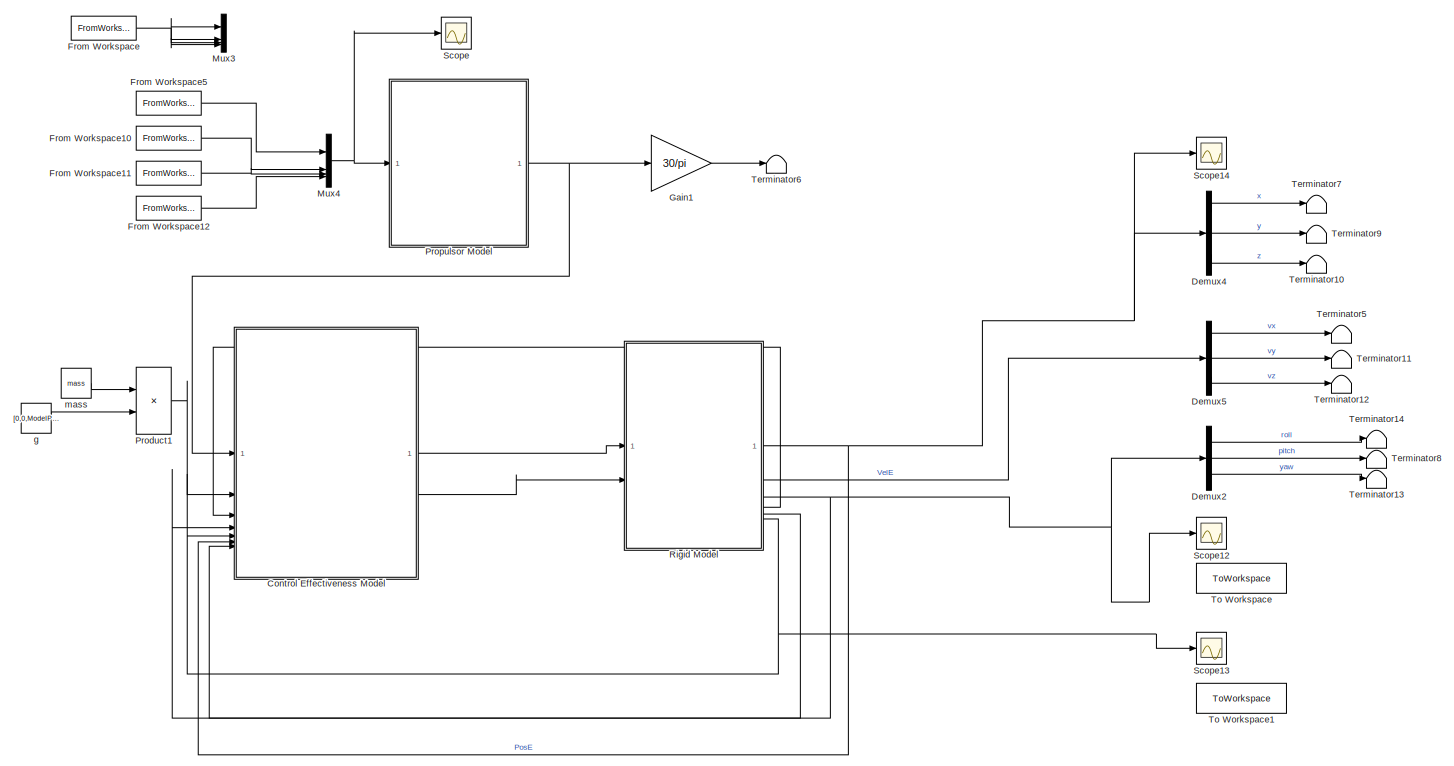
[diagram: root canvas - part 1/2, right side, full height]
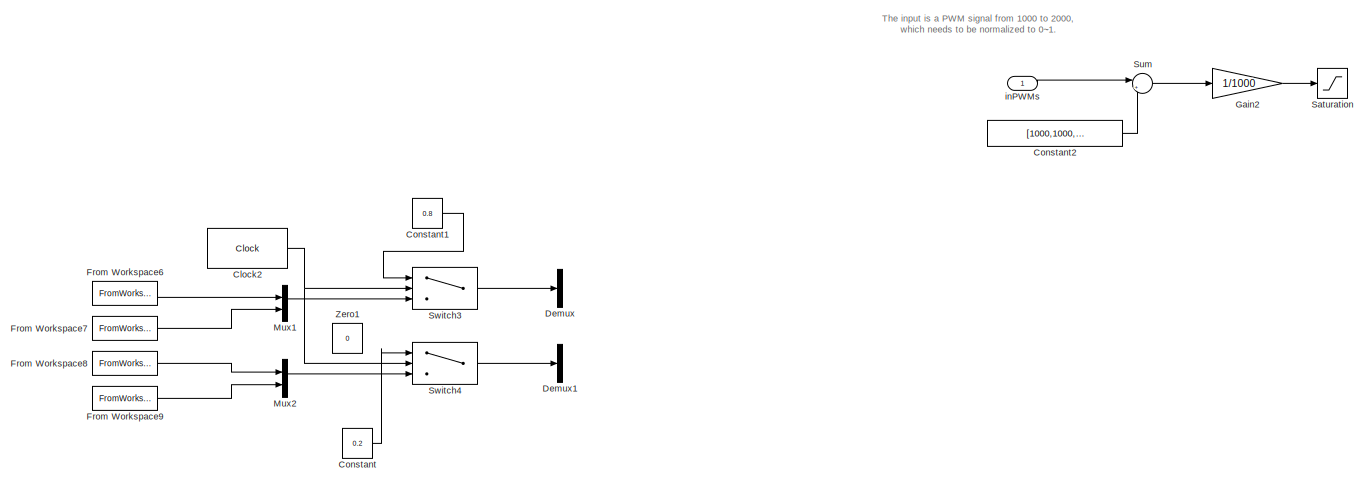
[diagram: root canvas - part 2/2, middle left region]
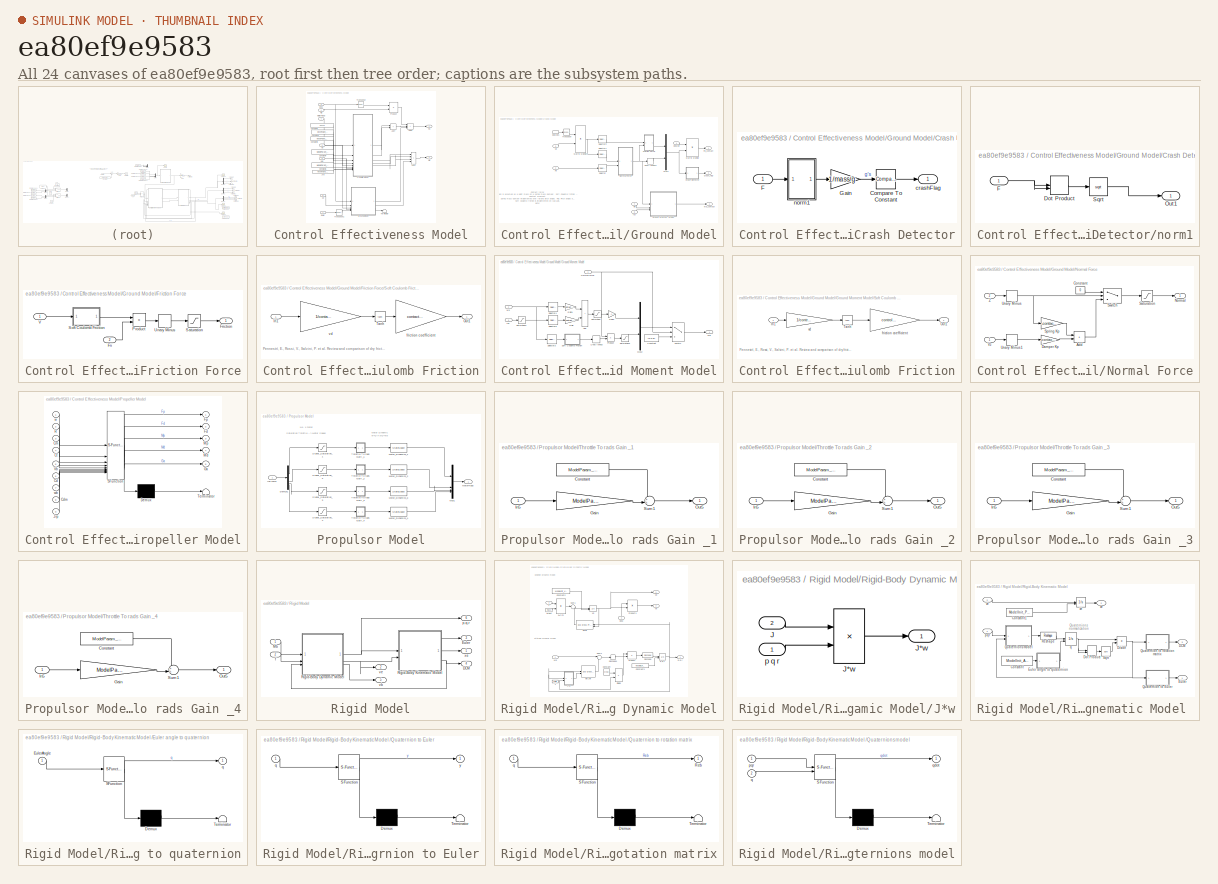
[diagram: thumbnail index - all 24 canvases of the model, root first then tree order]
MODEL slx_ea80ef9e9583
KIND model
CONFIG AbsTol = auto
CONFIG EnableMultiTasking = off
CONFIG FixedStep = auto
CONFIG MaxStep = auto
CONFIG MinStep = auto
CONFIG RelTol = 1e-3
CONFIG SampleTimeConstraint = Unconstrained
CONFIG SolverName = VariableStepAuto
CONFIG StartTime = 0.0
CONFIG StopTime = 130
BLOCK [Clock] Clock2
  Commented = on
  DisplayTime = on
BLOCK [Constant] Constant
  Commented = on
  Value = 0.2
BLOCK [Constant] Constant1
  Commented = on
  Value = 0.8
BLOCK [Constant] Constant2
  Value = [1000,1000,1000,1000]
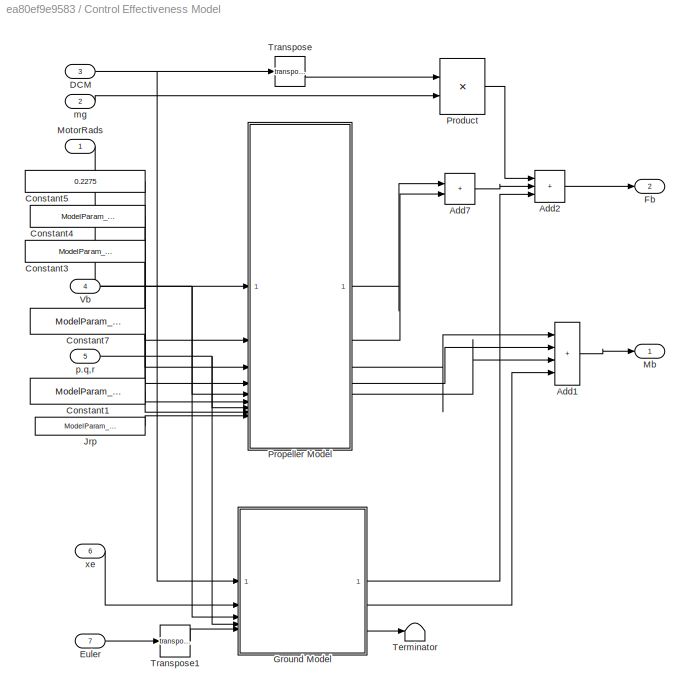
BLOCK [SubSystem] Control Effectiveness Model
  NameLocation = top
BLOCK [Sum] Control Effectiveness Model/Add1
  IconShape = rectangular
  Inputs = ++++
BLOCK [Sum] Control Effectiveness Model/Add2
  IconShape = rectangular
  Inputs = +++
BLOCK [Sum] Control Effectiveness Model/Add7
  IconShape = rectangular
BLOCK [Constant] Control Effectiveness Model/Constant1
  Value = ModelParam_uavCCm
BLOCK [Constant] Control Effectiveness Model/Constant3
  Value = ModelParam_rotorCt
BLOCK [Constant] Control Effectiveness Model/Constant4
  Value = ModelParam_rotorCm
BLOCK [Constant] Control Effectiveness Model/Constant5
  Value = 0.2275
BLOCK [Constant] Control Effectiveness Model/Constant7
  Value = ModelParam_uavCd
BLOCK [Inport] Control Effectiveness Model/DCM
  NameLocation = top
  Port = 3
BLOCK [Inport] Control Effectiveness Model/Euler
  Port = 7
BLOCK [Outport] Control Effectiveness Model/Fb
  Port = 2
  VectorParamsAs1DForOutWhenUnconnected = off
BLOCK [SubSystem] Control Effectiveness Model/Ground Model
BLOCK [SubSystem] Control Effectiveness Model/Ground Model/Crash Detector
BLOCK [Reference] Control Effectiveness Model/Ground Model/Crash Detector/Compare To Constant  REF=simulink/Logic and Bit
Operations/Compare
To Constant
  SourceBlock = simulink/Logic and Bit\nOperations/Compare\nTo Constant
  SourceType = Compare To Constant
BLOCK [Inport] Control Effectiveness Model/Ground Model/Crash Detector/F
BLOCK [Gain] Control Effectiveness Model/Ground Model/Crash Detector/Gain
  Gain = 1/mass/g
BLOCK [Outport] Control Effectiveness Model/Ground Model/Crash Detector/crashFlag
BLOCK [SubSystem] Control Effectiveness Model/Ground Model/Crash Detector/norm1
BLOCK [DotProduct] Control Effectiveness Model/Ground Model/Crash Detector/norm1/Dot Product
  OutDataTypeStr = Inherit: Inherit via internal rule
BLOCK [Inport] Control Effectiveness Model/Ground Model/Crash Detector/norm1/F
BLOCK [Outport] Control Effectiveness Model/Ground Model/Crash Detector/norm1/Out1
BLOCK [Sqrt] Control Effectiveness Model/Ground Model/Crash Detector/norm1/Sqrt
BLOCK [Outport] Control Effectiveness Model/Ground Model/Crash_flag
  Port = 3
BLOCK [Inport] Control Effectiveness Model/Ground Model/DCMbe
BLOCK [InportShadow] Control Effectiveness Model/Ground Model/DCMbe1
BLOCK [Outport] Control Effectiveness Model/Ground Model/Fb_contact
BLOCK [SubSystem] Control Effectiveness Model/Ground Model/Friction Force
BLOCK [Inport] Control Effectiveness Model/Ground Model/Friction Force/Fn
  Port = 2
BLOCK [Outport] Control Effectiveness Model/Ground Model/Friction Force/Friction
BLOCK [Product] Control Effectiveness Model/Ground Model/Friction Force/Product
BLOCK [Saturate] Control Effectiveness Model/Ground Model/Friction Force/Saturation
  LowerLimit = -contact.translation.maxFriction
  UpperLimit = contact.translation.maxFriction
BLOCK [SubSystem] Control Effectiveness Model/Ground Model/Friction Force/Soft Coulomb Friction
BLOCK [Inport] Control Effectiveness Model/Ground Model/Friction Force/Soft Coulomb Friction/In1
BLOCK [Outport] Control Effectiveness Model/Ground Model/Friction Force/Soft Coulomb Friction/Out1
BLOCK [Trigonometry] Control Effectiveness Model/Ground Model/Friction Force/Soft Coulomb Friction/Tanh
  Operator = tanh
BLOCK [Gain] Control Effectiveness Model/Ground Model/Friction Force/Soft Coulomb Friction/friction coefficient
  Gain = contact.translation.friction
BLOCK [Gain] Control Effectiveness Model/Ground Model/Friction Force/Soft Coulomb Friction/vd
  Gain = 1/contact.translation.vd
BLOCK [UnaryMinus] Control Effectiveness Model/Ground Model/Friction Force/Unary Minus
BLOCK [Inport] Control Effectiveness Model/Ground Model/Friction Force/V
BLOCK [SubSystem] Control Effectiveness Model/Ground Model/Ground Moment Model
BLOCK [Sum] Control Effectiveness Model/Ground Model/Ground Moment Model/Add
  IconShape = rectangular
BLOCK [Constant] Control Effectiveness Model/Ground Model/Ground Moment Model/Constant
  Value = [0 0 0]'
BLOCK [Gain] Control Effectiveness Model/Ground Model/Ground Moment Model/Gain
  Gain = contact.rotation.spring
BLOCK [Gain] Control Effectiveness Model/Ground Model/Ground Moment Model/Gain1
  Gain = contact.rotation.damper
BLOCK [Gain] Control Effectiveness Model/Ground Model/Ground Moment Model/Gain2
  Gain = -1
BLOCK [Outport] Control Effectiveness Model/Ground Model/Ground Moment Model/Mb
BLOCK [Mux] Control Effectiveness Model/Ground Model/Ground Moment Model/Mux2
  DisplayOption = bar
  Inputs = 2
BLOCK [Inport] Control Effectiveness Model/Ground Model/Ground Moment Model/Normal force
BLOCK [Product] Control Effectiveness Model/Ground Model/Ground Moment Model/Product
BLOCK [Saturate] Control Effectiveness Model/Ground Model/Ground Moment Model/Saturation
  LowerLimit = -control.rotation.maxMoment
  UpperLimit = control.rotation.maxMoment
BLOCK [Saturate] Control Effectiveness Model/Ground Model/Ground Moment Model/Saturation1
  LowerLimit = -20*pi/180
  UpperLimit = 20*pi/180
BLOCK [Saturate] Control Effectiveness Model/Ground Model/Ground Moment Model/Saturation2
  LowerLimit = -control.rotation.maxMoment
  UpperLimit = control.rotation.maxMoment
BLOCK [Selector] Control Effectiveness Model/Ground Model/Ground Moment Model/Selector3
  IndexOptions = Index vector (dialog)
  Indices = [3]
  InputPortWidth = 3
  OutputSizes = 1
BLOCK [Selector] Control Effectiveness Model/Ground Model/Ground Moment Model/Selector4
  IndexOptions = Index vector (dialog)
  Indices = [1, 2]
  InputPortWidth = 3
  OutputSizes = 1
BLOCK [Selector] Control Effectiveness Model/Ground Model/Ground Moment Model/Selector5
  IndexOptions = Index vector (dialog)
  Indices = [1, 2]
  InputPortWidth = 3
  OutputSizes = 1
BLOCK [SubSystem] Control Effectiveness Model/Ground Model/Ground Moment Model/Soft Coulomb Friction
BLOCK [Inport] Control Effectiveness Model/Ground Model/Ground Moment Model/Soft Coulomb Friction/In1
BLOCK [Outport] Control Effectiveness Model/Ground Model/Ground Moment Model/Soft Coulomb Friction/Out1
BLOCK [Trigonometry] Control Effectiveness Model/Ground Model/Ground Moment Model/Soft Coulomb Friction/Tanh
  Operator = tanh
BLOCK [Gain] Control Effectiveness Model/Ground Model/Ground Moment Model/Soft Coulomb Friction/friction coefficient
  Gain = control.rotation.friction
BLOCK [Gain] Control Effectiveness Model/Ground Model/Ground Moment Model/Soft Coulomb Friction/vd
  Gain = 1/control.rotation.vd
BLOCK [Switch] Control Effectiveness Model/Ground Model/Ground Moment Model/Switch
  Criteria = u2 > Threshold
  InputSameDT = off
  SaturateOnIntegerOverflow = off
BLOCK [UnaryMinus] Control Effectiveness Model/Ground Model/Ground Moment Model/Unary Minus
BLOCK [Inport] Control Effectiveness Model/Ground Model/Ground Moment Model/rpy
  Port = 3
BLOCK [Inport] Control Effectiveness Model/Ground Model/Ground Moment Model/wb
  Port = 2
BLOCK [Product] Control Effectiveness Model/Ground Model/Matrix Multiply
  Multiplication = Matrix(*)
BLOCK [Product] Control Effectiveness Model/Ground Model/Matrix Multiply1
  Multiplication = Matrix(*)
BLOCK [Outport] Control Effectiveness Model/Ground Model/Mb_contact
  Port = 2
BLOCK [Mux] Control Effectiveness Model/Ground Model/Mux1
  DisplayOption = bar
  Inputs = 2
BLOCK [SubSystem] Control Effectiveness Model/Ground Model/Normal Force
BLOCK [Sum] Control Effectiveness Model/Ground Model/Normal Force/Add
  IconShape = rectangular
BLOCK [Constant] Control Effectiveness Model/Ground Model/Normal Force/Constant
  Value = 0
BLOCK [Gain] Control Effectiveness Model/Ground Model/Normal Force/Damper Kp
  Gain = -contact.translation.damper
BLOCK [Outport] Control Effectiveness Model/Ground Model/Normal Force/Normal
BLOCK [Saturate] Control Effectiveness Model/Ground Model/Normal Force/Saturation
  LowerLimit = 0
  UpperLimit = contact.translation.maxNormal
BLOCK [Gain] Control Effectiveness Model/Ground Model/Normal Force/Spring Kp
  Gain = -contact.translation.spring
BLOCK [Switch] Control Effectiveness Model/Ground Model/Normal Force/Switch
  Criteria = u2 > Threshold
  InputSameDT = off
  SaturateOnIntegerOverflow = off
BLOCK [UnaryMinus] Control Effectiveness Model/Ground Model/Normal Force/Unary Minus
BLOCK [UnaryMinus] Control Effectiveness Model/Ground Model/Normal Force/Unary Minus1
BLOCK [Inport] Control Effectiveness Model/Ground Model/Normal Force/Vz
BLOCK [Inport] Control Effectiveness Model/Ground Model/Normal Force/Z
  Port = 2
BLOCK [Selector] Control Effectiveness Model/Ground Model/Selector
  IndexOptions = Index vector (dialog)
  Indices = [3]
  InputPortWidth = 3
  OutputSizes = 1
BLOCK [Selector] Control Effectiveness Model/Ground Model/Selector1
  IndexOptions = Index vector (dialog)
  Indices = [3]
  InputPortWidth = 3
  OutputSizes = 1
BLOCK [Selector] Control Effectiveness Model/Ground Model/Selector2
  IndexOptions = Index vector (dialog)
  Indices = [1,2]
  InputPortWidth = 3
  OutputSizes = 1
BLOCK [Math] Control Effectiveness Model/Ground Model/Transpose
  Operator = transpose
BLOCK [UnaryMinus] Control Effectiveness Model/Ground Model/Unary Minus1
BLOCK [Inport] Control Effectiveness Model/Ground Model/Vb
  Port = 3
BLOCK [Inport] Control Effectiveness Model/Ground Model/Xe
  Port = 2
BLOCK [Inport] Control Effectiveness Model/Ground Model/rpy
  Port = 5
BLOCK [Inport] Control Effectiveness Model/Ground Model/wb
  Port = 4
BLOCK [Constant] Control Effectiveness Model/Jrp
  Value = ModelParam_motorJm
BLOCK [Outport] Control Effectiveness Model/Mb
  VectorParamsAs1DForOutWhenUnconnected = off
BLOCK [Inport] Control Effectiveness Model/MotorRads
BLOCK [Product] Control Effectiveness Model/Product
  Multiplication = Matrix(*)
  NameLocation = top
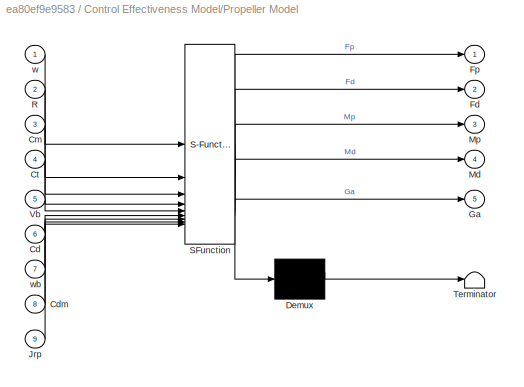
BLOCK [SubSystem] Control Effectiveness Model/Propeller Model
  ErrorFcn = Stateflow.Translate.translate
  PermitHierarchicalResolution = ExplicitOnly
  SFBlockType = MATLAB Function
  TreatAsAtomicUnit = on
BLOCK [Demux] Control Effectiveness Model/Propeller Model/ Demux 
  Outputs = 1
BLOCK [S-Function] Control Effectiveness Model/Propeller Model/ SFunction 
  EnableBusSupport = on
  FunctionName = sf_sfun
  PortCounts = [9 6]
  SFcnIsStateOwnerBlock = off
  SFunctionDeploymentMode = off
  Tag = Stateflow S-Function 3
BLOCK [Terminator] Control Effectiveness Model/Propeller Model/ Terminator 
BLOCK [Inport] Control Effectiveness Model/Propeller Model/Cd
  Port = 6
BLOCK [Inport] Control Effectiveness Model/Propeller Model/Cdm
  Port = 8
BLOCK [Inport] Control Effectiveness Model/Propeller Model/Cm
  Port = 3
BLOCK [Inport] Control Effectiveness Model/Propeller Model/Ct
  Port = 4
BLOCK [Outport] Control Effectiveness Model/Propeller Model/Fd
  Port = 2
  VectorParamsAs1DForOutWhenUnconnected = off
BLOCK [Outport] Control Effectiveness Model/Propeller Model/Fp
  VectorParamsAs1DForOutWhenUnconnected = off
BLOCK [Outport] Control Effectiveness Model/Propeller Model/Ga
  Port = 5
  VectorParamsAs1DForOutWhenUnconnected = off
BLOCK [Inport] Control Effectiveness Model/Propeller Model/Jrp
  Port = 9
BLOCK [Outport] Control Effectiveness Model/Propeller Model/Md
  Port = 4
  VectorParamsAs1DForOutWhenUnconnected = off
BLOCK [Outport] Control Effectiveness Model/Propeller Model/Mp
  Port = 3
  VectorParamsAs1DForOutWhenUnconnected = off
BLOCK [Inport] Control Effectiveness Model/Propeller Model/R
  Port = 2
BLOCK [Inport] Control Effectiveness Model/Propeller Model/Vb
  Port = 5
BLOCK [Inport] Control Effectiveness Model/Propeller Model/w
BLOCK [Inport] Control Effectiveness Model/Propeller Model/wb
  Port = 7
BLOCK [Terminator] Control Effectiveness Model/Terminator
BLOCK [Math] Control Effectiveness Model/Transpose
  Operator = transpose
  SignedPower = on
BLOCK [Math] Control Effectiveness Model/Transpose1
  Operator = transpose
BLOCK [Inport] Control Effectiveness Model/Vb
  Port = 4
BLOCK [Inport] Control Effectiveness Model/mg
  Port = 2
BLOCK [Inport] Control Effectiveness Model/p.q,r
  Port = 5
BLOCK [Inport] Control Effectiveness Model/xe 
  Port = 6
BLOCK [Demux] Demux
  Commented = on
  Outputs = 2
BLOCK [Demux] Demux1
  Commented = on
  Outputs = 2
BLOCK [Demux] Demux2
  Outputs = 3
BLOCK [Demux] Demux4
  Outputs = 3
BLOCK [Demux] Demux5
  Outputs = 3
BLOCK [FromWorkspace] From Workspace
  VariableName = motorStep
BLOCK [FromWorkspace] From Workspace10
  SampleTime = 0.01
  VariableName = motor2PWM
BLOCK [FromWorkspace] From Workspace11
  SampleTime = 0.01
  VariableName = motor3PWM
BLOCK [FromWorkspace] From Workspace12
  SampleTime = 0.01
  VariableName = motor4PWM
BLOCK [FromWorkspace] From Workspace5
  SampleTime = 0.01
  VariableName = motor1PWM
BLOCK [FromWorkspace] From Workspace6
  Commented = on
  SampleTime = 0.01
  VariableName = motor1PWM
BLOCK [FromWorkspace] From Workspace7
  Commented = on
  SampleTime = 0.01
  VariableName = motor2PWM
BLOCK [FromWorkspace] From Workspace8
  Commented = on
  SampleTime = 0.01
  VariableName = motor3PWM
BLOCK [FromWorkspace] From Workspace9
  Commented = on
  SampleTime = 0.01
  VariableName = motor4PWM
BLOCK [Gain] Gain1
  Gain = 30/pi
BLOCK [Gain] Gain2
  Gain = 1/1000
BLOCK [Mux] Mux1
  Commented = on
  DisplayOption = bar
  Inputs = 2
BLOCK [Mux] Mux2
  Commented = on
  DisplayOption = bar
  Inputs = 2
BLOCK [Mux] Mux3
  DisplayOption = bar
BLOCK [Mux] Mux4
  DisplayOption = bar
BLOCK [Product] Product1
  NameLocation = top
BLOCK [SubSystem] Propulsor Model
BLOCK [Demux] Propulsor Model/Demux1
BLOCK [Outport] Propulsor Model/MotorRads
  VectorParamsAs1DForOutWhenUnconnected = off
BLOCK [StateSpace] Propulsor Model/Motor_Dynamics_1
  A = -1/ModelParam_motorT
  C = 1/ModelParam_motorT
  D = 0
  InitialCondition = ModelInit_Rads*ModelParam_motorT
BLOCK [StateSpace] Propulsor Model/Motor_Dynamics_2
  A = -1/ModelParam_motorT
  C = 1/ModelParam_motorT
  D = 0
  InitialCondition = ModelInit_Rads*ModelParam_motorT
BLOCK [StateSpace] Propulsor Model/Motor_Dynamics_3
  A = -1/ModelParam_motorT
  C = 1/ModelParam_motorT
  D = 0
  InitialCondition = ModelInit_Rads*ModelParam_motorT
BLOCK [StateSpace] Propulsor Model/Motor_Dynamics_4
  A = -1/ModelParam_motorT
  C = 1/ModelParam_motorT
  D = 0
  InitialCondition = ModelInit_Rads*ModelParam_motorT
BLOCK [Mux] Propulsor Model/Mux1
  DisplayOption = bar
BLOCK [Saturate] Propulsor Model/Signal_Saturation_1
  LowerLimit = 0
  UpperLimit = 1
BLOCK [Saturate] Propulsor Model/Signal_Saturation_2
  LowerLimit = 0
  UpperLimit = 1
BLOCK [Saturate] Propulsor Model/Signal_Saturation_3
  LowerLimit = 0
  UpperLimit = 1
BLOCK [Saturate] Propulsor Model/Signal_Saturation_4
  LowerLimit = 0
  UpperLimit = 1
BLOCK [SubSystem] Propulsor Model/Throttle To rads Gain _1
  ShowPortLabels = none
BLOCK [Constant] Propulsor Model/Throttle To rads Gain _1/Constant
  Value = ModelParam_motorWb
BLOCK [Gain] Propulsor Model/Throttle To rads Gain _1/Gain
  Gain = ModelParam_motorCr
BLOCK [Inport] Propulsor Model/Throttle To rads Gain _1/In5
BLOCK [Outport] Propulsor Model/Throttle To rads Gain _1/Out5
  VectorParamsAs1DForOutWhenUnconnected = off
BLOCK [Sum] Propulsor Model/Throttle To rads Gain _1/Sum1
  Inputs = ++|
BLOCK [SubSystem] Propulsor Model/Throttle To rads Gain _2
  ShowPortLabels = none
BLOCK [Constant] Propulsor Model/Throttle To rads Gain _2/Constant
  Value = ModelParam_motorWb
BLOCK [Gain] Propulsor Model/Throttle To rads Gain _2/Gain
  Gain = ModelParam_motorCr
BLOCK [Inport] Propulsor Model/Throttle To rads Gain _2/In5
BLOCK [Outport] Propulsor Model/Throttle To rads Gain _2/Out5
  VectorParamsAs1DForOutWhenUnconnected = off
BLOCK [Sum] Propulsor Model/Throttle To rads Gain _2/Sum1
  Inputs = ++|
BLOCK [SubSystem] Propulsor Model/Throttle To rads Gain _3
  ShowPortLabels = none
BLOCK [Constant] Propulsor Model/Throttle To rads Gain _3/Constant
  Value = ModelParam_motorWb
BLOCK [Gain] Propulsor Model/Throttle To rads Gain _3/Gain
  Gain = ModelParam_motorCr
BLOCK [Inport] Propulsor Model/Throttle To rads Gain _3/In5
BLOCK [Outport] Propulsor Model/Throttle To rads Gain _3/Out5
  VectorParamsAs1DForOutWhenUnconnected = off
BLOCK [Sum] Propulsor Model/Throttle To rads Gain _3/Sum1
  Inputs = ++|
BLOCK [SubSystem] Propulsor Model/Throttle To rads Gain _4
  ShowPortLabels = none
BLOCK [Constant] Propulsor Model/Throttle To rads Gain _4/Constant
  Value = ModelParam_motorWb
BLOCK [Gain] Propulsor Model/Throttle To rads Gain _4/Gain
  Gain = ModelParam_motorCr
BLOCK [Inport] Propulsor Model/Throttle To rads Gain _4/In5
BLOCK [Outport] Propulsor Model/Throttle To rads Gain _4/Out5
  VectorParamsAs1DForOutWhenUnconnected = off
BLOCK [Sum] Propulsor Model/Throttle To rads Gain _4/Sum1
  Inputs = ++|
BLOCK [Inport] Propulsor Model/inPWMs
BLOCK [SubSystem] Rigid Model
BLOCK [Outport] Rigid Model/DCM
  Port = 4
  VectorParamsAs1DForOutWhenUnconnected = off
BLOCK [Outport] Rigid Model/Euler
  Port = 3
  VectorParamsAs1DForOutWhenUnconnected = off
BLOCK [Inport] Rigid Model/Mb
BLOCK [SubSystem] Rigid Model/Rigid-Body Dynamic Model
BLOCK [Constant] Rigid Model/Rigid-Body Dynamic Model/ Mass 
  Value = mass
BLOCK [Constant] Rigid Model/Rigid-Body Dynamic Model/Constant
  Value = eye(3)
BLOCK [Constant] Rigid Model/Rigid-Body Dynamic Model/Constant1
  Value = ModelInit_RateB
BLOCK [Constant] Rigid Model/Rigid-Body Dynamic Model/Constant2
  Value = ModelInit_VelB
BLOCK [Inport] Rigid Model/Rigid-Body Dynamic Model/DCM
  NameLocation = right
  Port = 3
BLOCK [Product] Rigid Model/Rigid-Body Dynamic Model/Divide
  Inputs = */
  Multiplication = Matrix(*)
BLOCK [Constant] Rigid Model/Rigid-Body Dynamic Model/J 
  Value = inertia
BLOCK [SubSystem] Rigid Model/Rigid-Body Dynamic Model/J*w
BLOCK [Inport] Rigid Model/Rigid-Body Dynamic Model/J*w/J
  Port = 2
BLOCK [Product] Rigid Model/Rigid-Body Dynamic Model/J*w/J*w
  Multiplication = Matrix(*)
BLOCK [Outport] Rigid Model/Rigid-Body Dynamic Model/J*w/J*w 
  VectorParamsAs1DForOutWhenUnconnected = off
BLOCK [Inport] Rigid Model/Rigid-Body Dynamic Model/J*w/p q r
BLOCK [Inport] Rigid Model/Rigid-Body Dynamic Model/Mb
BLOCK [Product] Rigid Model/Rigid-Body Dynamic Model/Product
  Multiplication = Matrix(*)
BLOCK [Product] Rigid Model/Rigid-Body Dynamic Model/Product1
  Multiplication = Matrix(*)
BLOCK [Reshape] Rigid Model/Rigid-Body Dynamic Model/Reshape
  OutputDimensionality = Customize
  OutputDimensions = [3,1]
BLOCK [Reshape] Rigid Model/Rigid-Body Dynamic Model/Reshape1
  OutputDimensionality = Column vector (2-D)
BLOCK [Sum] Rigid Model/Rigid-Body Dynamic Model/Sum1
  Inputs = |+-
BLOCK [Sum] Rigid Model/Rigid-Body Dynamic Model/Sum2
  Inputs = |+-
BLOCK [Product] Rigid Model/Rigid-Body Dynamic Model/a=f//m
  Inputs = */
BLOCK [Inport] Rigid Model/Rigid-Body Dynamic Model/f
  Port = 2
BLOCK [Integrator] Rigid Model/Rigid-Body Dynamic Model/p,q,r
  InitialConditionSource = external
BLOCK [Outport] Rigid Model/Rigid-Body Dynamic Model/p,q,r 
  VectorParamsAs1DForOutWhenUnconnected = off
BLOCK [Integrator] Rigid Model/Rigid-Body Dynamic Model/vb
  InitialConditionSource = external
BLOCK [Outport] Rigid Model/Rigid-Body Dynamic Model/vb 
  Port = 3
  VectorParamsAs1DForOutWhenUnconnected = off
BLOCK [Outport] Rigid Model/Rigid-Body Dynamic Model/ve
  Port = 2
  VectorParamsAs1DForOutWhenUnconnected = off
BLOCK [Reference] Rigid Model/Rigid-Body Dynamic Model/wx(Jw)  REF=sharedutil/3x3 Cross Product
  SourceBlock = sharedutil/3x3 Cross Product
  SourceType = CrossProduct
BLOCK [Reference] Rigid Model/Rigid-Body Dynamic Model/wxVb  REF=sharedutil/3x3 Cross Product
  SourceBlock = sharedutil/3x3 Cross Product
  SourceType = CrossProduct
BLOCK [SubSystem] Rigid Model/Rigid-Body Kinematic Model 
BLOCK [Constant] Rigid Model/Rigid-Body Kinematic Model /Constant
  Value = ModelInit_AngEuler
BLOCK [Constant] Rigid Model/Rigid-Body Kinematic Model /Constant1
  Value = ModelInit_PosE
BLOCK [Outport] Rigid Model/Rigid-Body Kinematic Model /DCM
  Port = 3
  VectorParamsAs1DForOutWhenUnconnected = off
BLOCK [Product] Rigid Model/Rigid-Body Kinematic Model /Divide
  Inputs = */
BLOCK [DotProduct] Rigid Model/Rigid-Body Kinematic Model /Dot Product
  OutDataTypeStr = Inherit: Inherit via internal rule
BLOCK [Outport] Rigid Model/Rigid-Body Kinematic Model /Euler
  VectorParamsAs1DForOutWhenUnconnected = off
BLOCK [SubSystem] Rigid Model/Rigid-Body Kinematic Model /Euler angle to quaternion
  ErrorFcn = Stateflow.Translate.translate
  PermitHierarchicalResolution = ExplicitOnly
  SFBlockType = MATLAB Function
BLOCK [Demux] Rigid Model/Rigid-Body Kinematic Model /Euler angle to quaternion/ Demux 
  Outputs = 1
BLOCK [S-Function] Rigid Model/Rigid-Body Kinematic Model /Euler angle to quaternion/ SFunction 
  EnableBusSupport = on
  FunctionName = sf_sfun
  PortCounts = [1 2]
  SFcnIsStateOwnerBlock = off
  SFunctionDeploymentMode = off
  Tag = Stateflow S-Function 4
BLOCK [Terminator] Rigid Model/Rigid-Body Kinematic Model /Euler angle to quaternion/ Terminator 
BLOCK [Inport] Rigid Model/Rigid-Body Kinematic Model /Euler angle to quaternion/EulerAngle
BLOCK [Outport] Rigid Model/Rigid-Body Kinematic Model /Euler angle to quaternion/q
  VectorParamsAs1DForOutWhenUnconnected = off
BLOCK [SubSystem] Rigid Model/Rigid-Body Kinematic Model /Quaternion to Euler
  ErrorFcn = Stateflow.Translate.translate
  PermitHierarchicalResolution = ExplicitOnly
  SFBlockType = MATLAB Function
BLOCK [Demux] Rigid Model/Rigid-Body Kinematic Model /Quaternion to Euler/ Demux 
  Outputs = 1
BLOCK [S-Function] Rigid Model/Rigid-Body Kinematic Model /Quaternion to Euler/ SFunction 
  EnableBusSupport = on
  FunctionName = sf_sfun
  PortCounts = [1 2]
  SFcnIsStateOwnerBlock = off
  SFunctionDeploymentMode = off
  Tag = Stateflow S-Function 6
BLOCK [Terminator] Rigid Model/Rigid-Body Kinematic Model /Quaternion to Euler/ Terminator 
BLOCK [Inport] Rigid Model/Rigid-Body Kinematic Model /Quaternion to Euler/q
BLOCK [Outport] Rigid Model/Rigid-Body Kinematic Model /Quaternion to Euler/y
  VectorParamsAs1DForOutWhenUnconnected = off
BLOCK [SubSystem] Rigid Model/Rigid-Body Kinematic Model /Quaternion to rotation matrix
  ErrorFcn = Stateflow.Translate.translate
  PermitHierarchicalResolution = ExplicitOnly
  SFBlockType = MATLAB Function
BLOCK [Demux] Rigid Model/Rigid-Body Kinematic Model /Quaternion to rotation matrix/ Demux 
  Outputs = 1
BLOCK [S-Function] Rigid Model/Rigid-Body Kinematic Model /Quaternion to rotation matrix/ SFunction 
  EnableBusSupport = on
  FunctionName = sf_sfun
  PortCounts = [1 2]
  SFcnIsStateOwnerBlock = off
  SFunctionDeploymentMode = off
  Tag = Stateflow S-Function 7
BLOCK [Terminator] Rigid Model/Rigid-Body Kinematic Model /Quaternion to rotation matrix/ Terminator 
BLOCK [Outport] Rigid Model/Rigid-Body Kinematic Model /Quaternion to rotation matrix/Reb
  VectorParamsAs1DForOutWhenUnconnected = off
BLOCK [Inport] Rigid Model/Rigid-Body Kinematic Model /Quaternion to rotation matrix/q
BLOCK [SubSystem] Rigid Model/Rigid-Body Kinematic Model /Quaternions model
  ErrorFcn = Stateflow.Translate.translate
  PermitHierarchicalResolution = ExplicitOnly
  SFBlockType = MATLAB Function
  TreatAsAtomicUnit = on
BLOCK [Demux] Rigid Model/Rigid-Body Kinematic Model /Quaternions model/ Demux 
  Outputs = 1
BLOCK [S-Function] Rigid Model/Rigid-Body Kinematic Model /Quaternions model/ SFunction 
  EnableBusSupport = on
  FunctionName = sf_sfun
  PortCounts = [2 2]
  SFcnIsStateOwnerBlock = off
  SFunctionDeploymentMode = off
  Tag = Stateflow S-Function 12
BLOCK [Terminator] Rigid Model/Rigid-Body Kinematic Model /Quaternions model/ Terminator 
BLOCK [Inport] Rigid Model/Rigid-Body Kinematic Model /Quaternions model/pqr
BLOCK [Inport] Rigid Model/Rigid-Body Kinematic Model /Quaternions model/q
  Port = 2
BLOCK [Outport] Rigid Model/Rigid-Body Kinematic Model /Quaternions model/qdot
  VectorParamsAs1DForOutWhenUnconnected = off
BLOCK [Reshape] Rigid Model/Rigid-Body Kinematic Model /Reshape
  OutputDimensionality = Customize
  OutputDimensions = [4,1]
BLOCK [Sqrt] Rigid Model/Rigid-Body Kinematic Model /Sqrt
BLOCK [Inport] Rigid Model/Rigid-Body Kinematic Model /pqr
BLOCK [Integrator] Rigid Model/Rigid-Body Kinematic Model /q
  InitialConditionSource = external
BLOCK [Inport] Rigid Model/Rigid-Body Kinematic Model /ve
  Port = 2
BLOCK [Integrator] Rigid Model/Rigid-Body Kinematic Model /xe
  InitialConditionSource = external
BLOCK [Outport] Rigid Model/Rigid-Body Kinematic Model /xe 
  Port = 2
  VectorParamsAs1DForOutWhenUnconnected = off
BLOCK [Inport] Rigid Model/f
  Port = 2
BLOCK [Outport] Rigid Model/p,q,r 
  Port = 6
  VectorParamsAs1DForOutWhenUnconnected = off
BLOCK [Outport] Rigid Model/vb 
  Port = 5
  VectorParamsAs1DForOutWhenUnconnected = off
BLOCK [Outport] Rigid Model/ve
  Port = 2
  VectorParamsAs1DForOutWhenUnconnected = off
BLOCK [Outport] Rigid Model/xe 
  VectorParamsAs1DForOutWhenUnconnected = off
BLOCK [Saturate] Saturation
  LowerLimit = 0
  UpperLimit = 1
BLOCK [Scope] Scope
  Floating = off
  NumInputPorts = 1
  ScopeSpecificationString = Simulink.scopes.TimeScopeBlockCfg('CurrentConfiguration', extmgr.ConfigurationSet(extmgr.Configuration('Core','General UI',true),extmgr.Configuration('Core','Source UI',true),extmgr.Configuration('Sources','WiredSimulink',true,'DataLoggingVariableName','ScopeData1'),extmgr.Configuration('Visuals','Time Domain',true,'SerializedDisplays',{struct('MinYLimReal','0.47489','MaxYLimReal','0.8442','YLabel...<+1425ch>
BLOCK [Scope] Scope12
  Floating = off
  NumInputPorts = 1
  ScopeSpecificationString = Simulink.scopes.TimeScopeBlockCfg('CurrentConfiguration', extmgr.ConfigurationSet(extmgr.Configuration('Core','General UI',true),extmgr.Configuration('Core','Source UI',true),extmgr.Configuration('Sources','WiredSimulink',true,'DataLoggingVariableName','ScopeData1'),extmgr.Configuration('Visuals','Time Domain',true,'SerializedDisplays',{struct('MinYLimReal','-3.65612','MaxYLimReal','2.3184','YLabe...<+1441ch>
BLOCK [Scope] Scope13
  Floating = off
  NumInputPorts = 1
  ScopeSpecificationString = Simulink.scopes.TimeScopeBlockCfg('CurrentConfiguration', extmgr.ConfigurationSet(extmgr.Configuration('Core','General UI',true),extmgr.Configuration('Core','Source UI',true),extmgr.Configuration('Sources','WiredSimulink',true,'DataLoggingVariableName','ScopeData2'),extmgr.Configuration('Visuals','Time Domain',true,'SerializedDisplays',{struct('MinYLimReal','-0.57123','MaxYLimReal','3.58736','YLab...<+1410ch>
BLOCK [Scope] Scope14
  Floating = off
  NumInputPorts = 1
  ScopeSpecificationString = Simulink.scopes.TimeScopeBlockCfg('CurrentConfiguration', extmgr.ConfigurationSet(extmgr.Configuration('Core','General UI',true),extmgr.Configuration('Core','Source UI',true),extmgr.Configuration('Sources','WiredSimulink',true,'DataLoggingVariableName','ScopeData3'),extmgr.Configuration('Visuals','Time Domain',true,'SerializedDisplays',{struct('MinYLimReal','-2.38614','MaxYLimReal','14.38546','YLa...<+1774ch>
BLOCK [Sum] Sum
  Inputs = |+-
BLOCK [Switch] Switch3
  Commented = on
  Criteria = u2 > Threshold
  InputSameDT = off
  SaturateOnIntegerOverflow = off
  Threshold = 102
BLOCK [Switch] Switch4
  Commented = on
  Criteria = u2 > Threshold
  InputSameDT = off
  SaturateOnIntegerOverflow = off
  Threshold = 102
BLOCK [Terminator] Terminator10
BLOCK [Terminator] Terminator11
BLOCK [Terminator] Terminator12
BLOCK [Terminator] Terminator13
BLOCK [Terminator] Terminator14
BLOCK [Terminator] Terminator5
BLOCK [Terminator] Terminator6
BLOCK [Terminator] Terminator7
BLOCK [Terminator] Terminator8
  NameLocation = right
BLOCK [Terminator] Terminator9
BLOCK [ToWorkspace] To Workspace
  FixptAsFi = on
  MaxDataPoints = inf
  SampleTime = 0.25
  SaveFormat = Timeseries
  VariableName = rpy
BLOCK [ToWorkspace] To Workspace1
  FixptAsFi = on
  MaxDataPoints = inf
  SampleTime = 0.25
  SaveFormat = Timeseries
  VariableName = pqr
BLOCK [Constant] Zero1
  Commented = on
  OutDataTypeStr = Inherit: Inherit via back propagation
  Value = 0
BLOCK [Constant] g
  Value = [0,0,ModelParam_envGravityAcc]
BLOCK [Inport] inPWMs
BLOCK [Constant] mass
  Value = mass
ANNOTATION (root): The input is a PWM signal from 1000 to 2000, which needs to be normalized to 0~1.
ANNOTATION Control Effectiveness Model/Ground Model: Contact force: Body is assumed as a point mass on a spring mass damper. Soft Coulomb friction model is used to simulate friction. Contact moment: Spring mass damper implemented over roll and pitch angles. Roll, Pitch angles are assumed to be small. Soft Coulomb friction is implemented on yaw axis. Note: Contact forces are sensed by accelerometer model. A hard contact model would generate high swit...<+103ch>
ANNOTATION Control Effectiveness Model/Ground Model/Friction Force/Soft Coulomb Friction: Pennestrì, E., Rossi, V., Salvini, P. et al. Review and comparison of dry friction force models. Nonlinear Dyn 83, 1785–1801 (2016). https://doi.org/10.1007/s11071-015-2485-3
ANNOTATION Control Effectiveness Model/Ground Model/Ground Moment Model/Soft Coulomb Friction: Pennestrì, E., Rossi, V., Salvini, P. et al. Review and comparison of dry friction force models. Nonlinear Dyn 83, 1785–1801 (2016). https://doi.org/10.1007/s11071-015-2485-3
ANNOTATION Propulsor Model: No. 1 motor Saturation Throttle --> Motor Speed
ANNOTATION Propulsor Model: Motor Dynamic w=1/(Ts+1)*wb
ANNOTATION Rigid Model/Rigid-Body Dynamic Model: attitude dynamic model
ANNOTATION Rigid Model/Rigid-Body Dynamic Model: position dynamic model
ANNOTATION Rigid Model/Rigid-Body Kinematic Model : Quaternions normalization
NET Clock2:1 -> Switch3:2, Switch4:2
LINE Constant1:1 -> Switch3:1
LINE Constant2:1 -> Sum:2
LINE Constant:1 -> Switch4:1
LINE Control Effectiveness Model/Add1:1 -> Control Effectiveness Model/Mb:1
LINE Control Effectiveness Model/Add2:1 -> Control Effectiveness Model/Fb:1
LINE Control Effectiveness Model/Add7:1 -> Control Effectiveness Model/Add2:2
LINE Control Effectiveness Model/Constant1:1 -> Control Effectiveness Model/Propeller Model:8
LINE Control Effectiveness Model/Constant3:1 -> Control Effectiveness Model/Propeller Model:4
LINE Control Effectiveness Model/Constant4:1 -> Control Effectiveness Model/Propeller Model:3
LINE Control Effectiveness Model/Constant5:1 -> Control Effectiveness Model/Propeller Model:2
LINE Control Effectiveness Model/Constant7:1 -> Control Effectiveness Model/Propeller Model:6
NET Control Effectiveness Model/DCM:1 -> Control Effectiveness Model/Ground Model:1, Control Effectiveness Model/Transpose:1
LINE Control Effectiveness Model/Euler:1 -> Control Effectiveness Model/Transpose1:1
LINE Control Effectiveness Model/Ground Model/Crash Detector/Compare To Constant:1 -> Control Effectiveness Model/Ground Model/Crash Detector/crashFlag:1
LINE Control Effectiveness Model/Ground Model/Crash Detector/F:1 -> Control Effectiveness Model/Ground Model/Crash Detector/norm1:1
LINE Control Effectiveness Model/Ground Model/Crash Detector/Gain:1 -> Control Effectiveness Model/Ground Model/Crash Detector/Compare To Constant:1
LINE Control Effectiveness Model/Ground Model/Crash Detector/norm1/Dot Product:1 -> Control Effectiveness Model/Ground Model/Crash Detector/norm1/Sqrt:1
NET Control Effectiveness Model/Ground Model/Crash Detector/norm1/F:1 -> Control Effectiveness Model/Ground Model/Crash Detector/norm1/Dot Product:1, Control Effectiveness Model/Ground Model/Crash Detector/norm1/Dot Product:2
LINE Control Effectiveness Model/Ground Model/Crash Detector/norm1/Sqrt:1 -> Control Effectiveness Model/Ground Model/Crash Detector/norm1/Out1:1
LINE Control Effectiveness Model/Ground Model/Crash Detector/norm1:1 -> Control Effectiveness Model/Ground Model/Crash Detector/Gain:1
LINE Control Effectiveness Model/Ground Model/Crash Detector:1 -> Control Effectiveness Model/Ground Model/Crash_flag:1
LINE Control Effectiveness Model/Ground Model/DCMbe1:1 -> Control Effectiveness Model/Ground Model/Transpose:1
LINE Control Effectiveness Model/Ground Model/DCMbe:1 -> Control Effectiveness Model/Ground Model/Matrix Multiply:1
LINE Control Effectiveness Model/Ground Model/Friction Force/Fn:1 -> Control Effectiveness Model/Ground Model/Friction Force/Product:2
LINE Control Effectiveness Model/Ground Model/Friction Force/Product:1 -> Control Effectiveness Model/Ground Model/Friction Force/Unary Minus:1
LINE Control Effectiveness Model/Ground Model/Friction Force/Saturation:1 -> Control Effectiveness Model/Ground Model/Friction Force/Friction:1
LINE Control Effectiveness Model/Ground Model/Friction Force/Soft Coulomb Friction/In1:1 -> Control Effectiveness Model/Ground Model/Friction Force/Soft Coulomb Friction/vd:1
LINE Control Effectiveness Model/Ground Model/Friction Force/Soft Coulomb Friction/Tanh:1 -> Control Effectiveness Model/Ground Model/Friction Force/Soft Coulomb Friction/friction coefficient:1
LINE Control Effectiveness Model/Ground Model/Friction Force/Soft Coulomb Friction/friction coefficient:1 -> Control Effectiveness Model/Ground Model/Friction Force/Soft Coulomb Friction/Out1:1
LINE Control Effectiveness Model/Ground Model/Friction Force/Soft Coulomb Friction/vd:1 -> Control Effectiveness Model/Ground Model/Friction Force/Soft Coulomb Friction/Tanh:1
LINE Control Effectiveness Model/Ground Model/Friction Force/Soft Coulomb Friction:1 -> Control Effectiveness Model/Ground Model/Friction Force/Product:1
LINE Control Effectiveness Model/Ground Model/Friction Force/Unary Minus:1 -> Control Effectiveness Model/Ground Model/Friction Force/Saturation:1
LINE Control Effectiveness Model/Ground Model/Friction Force/V:1 -> Control Effectiveness Model/Ground Model/Friction Force/Soft Coulomb Friction:1
LINE Control Effectiveness Model/Ground Model/Friction Force:1 -> Control Effectiveness Model/Ground Model/Mux1:1
LINE Control Effectiveness Model/Ground Model/Ground Moment Model/Add:1 -> Control Effectiveness Model/Ground Model/Ground Moment Model/Saturation:1
LINE Control Effectiveness Model/Ground Model/Ground Moment Model/Constant:1 -> Control Effectiveness Model/Ground Model/Ground Moment Model/Switch:3
LINE Control Effectiveness Model/Ground Model/Ground Moment Model/Gain1:1 -> Control Effectiveness Model/Ground Model/Ground Moment Model/Add:1
LINE Control Effectiveness Model/Ground Model/Ground Moment Model/Gain2:1 -> Control Effectiveness Model/Ground Model/Ground Moment Model/Mux2:1
LINE Control Effectiveness Model/Ground Model/Ground Moment Model/Gain:1 -> Control Effectiveness Model/Ground Model/Ground Moment Model/Add:2
LINE Control Effectiveness Model/Ground Model/Ground Moment Model/Mux2:1 -> Control Effectiveness Model/Ground Model/Ground Moment Model/Switch:1
NET Control Effectiveness Model/Ground Model/Ground Moment Model/Normal force:1 -> Control Effectiveness Model/Ground Model/Ground Moment Model/Product:1, Control Effectiveness Model/Ground Model/Ground Moment Model/Switch:2
LINE Control Effectiveness Model/Ground Model/Ground Moment Model/Product:1 -> Control Effectiveness Model/Ground Model/Ground Moment Model/Saturation2:1
LINE Control Effectiveness Model/Ground Model/Ground Moment Model/Saturation1:1 -> Control Effectiveness Model/Ground Model/Ground Moment Model/Selector5:1
LINE Control Effectiveness Model/Ground Model/Ground Moment Model/Saturation2:1 -> Control Effectiveness Model/Ground Model/Ground Moment Model/Mux2:2
LINE Control Effectiveness Model/Ground Model/Ground Moment Model/Saturation:1 -> Control Effectiveness Model/Ground Model/Ground Moment Model/Gain2:1
LINE Control Effectiveness Model/Ground Model/Ground Moment Model/Selector3:1 -> Control Effectiveness Model/Ground Model/Ground Moment Model/Soft Coulomb Friction:1
LINE Control Effectiveness Model/Ground Model/Ground Moment Model/Selector4:1 -> Control Effectiveness Model/Ground Model/Ground Moment Model/Gain1:1
LINE Control Effectiveness Model/Ground Model/Ground Moment Model/Selector5:1 -> Control Effectiveness Model/Ground Model/Ground Moment Model/Gain:1
LINE Control Effectiveness Model/Ground Model/Ground Moment Model/Soft Coulomb Friction/In1:1 -> Control Effectiveness Model/Ground Model/Ground Moment Model/Soft Coulomb Friction/vd:1
LINE Control Effectiveness Model/Ground Model/Ground Moment Model/Soft Coulomb Friction/Tanh:1 -> Control Effectiveness Model/Ground Model/Ground Moment Model/Soft Coulomb Friction/friction coefficient:1
LINE Control Effectiveness Model/Ground Model/Ground Moment Model/Soft Coulomb Friction/friction coefficient:1 -> Control Effectiveness Model/Ground Model/Ground Moment Model/Soft Coulomb Friction/Out1:1
LINE Control Effectiveness Model/Ground Model/Ground Moment Model/Soft Coulomb Friction/vd:1 -> Control Effectiveness Model/Ground Model/Ground Moment Model/Soft Coulomb Friction/Tanh:1
LINE Control Effectiveness Model/Ground Model/Ground Moment Model/Soft Coulomb Friction:1 -> Control Effectiveness Model/Ground Model/Ground Moment Model/Unary Minus:1
LINE Control Effectiveness Model/Ground Model/Ground Moment Model/Switch:1 -> Control Effectiveness Model/Ground Model/Ground Moment Model/Mb:1
LINE Control Effectiveness Model/Ground Model/Ground Moment Model/Unary Minus:1 -> Control Effectiveness Model/Ground Model/Ground Moment Model/Product:2
LINE Control Effectiveness Model/Ground Model/Ground Moment Model/rpy:1 -> Control Effectiveness Model/Ground Model/Ground Moment Model/Saturation1:1
NET Control Effectiveness Model/Ground Model/Ground Moment Model/wb:1 -> Control Effectiveness Model/Ground Model/Ground Moment Model/Selector3:1, Control Effectiveness Model/Ground Model/Ground Moment Model/Selector4:1
LINE Control Effectiveness Model/Ground Model/Ground Moment Model:1 -> Control Effectiveness Model/Ground Model/Mb_contact:1
NET Control Effectiveness Model/Ground Model/Matrix Multiply1:1 -> Control Effectiveness Model/Ground Model/Selector1:1, Control Effectiveness Model/Ground Model/Selector2:1
LINE Control Effectiveness Model/Ground Model/Matrix Multiply:1 -> Control Effectiveness Model/Ground Model/Fb_contact:1
NET Control Effectiveness Model/Ground Model/Mux1:1 -> Control Effectiveness Model/Ground Model/Crash Detector:1, Control Effectiveness Model/Ground Model/Matrix Multiply:2
LINE Control Effectiveness Model/Ground Model/Normal Force/Add:1 -> Control Effectiveness Model/Ground Model/Normal Force/Switch:3
LINE Control Effectiveness Model/Ground Model/Normal Force/Constant:1 -> Control Effectiveness Model/Ground Model/Normal Force/Switch:1
LINE Control Effectiveness Model/Ground Model/Normal Force/Damper Kp:1 -> Control Effectiveness Model/Ground Model/Normal Force/Add:2
LINE Control Effectiveness Model/Ground Model/Normal Force/Saturation:1 -> Control Effectiveness Model/Ground Model/Normal Force/Normal:1
LINE Control Effectiveness Model/Ground Model/Normal Force/Spring Kp:1 -> Control Effectiveness Model/Ground Model/Normal Force/Add:1
LINE Control Effectiveness Model/Ground Model/Normal Force/Switch:1 -> Control Effectiveness Model/Ground Model/Normal Force/Saturation:1
LINE Control Effectiveness Model/Ground Model/Normal Force/Unary Minus1:1 -> Control Effectiveness Model/Ground Model/Normal Force/Damper Kp:1
NET Control Effectiveness Model/Ground Model/Normal Force/Unary Minus:1 -> Control Effectiveness Model/Ground Model/Normal Force/Spring Kp:1, Control Effectiveness Model/Ground Model/Normal Force/Switch:2
LINE Control Effectiveness Model/Ground Model/Normal Force/Vz:1 -> Control Effectiveness Model/Ground Model/Normal Force/Unary Minus1:1
LINE Control Effectiveness Model/Ground Model/Normal Force/Z:1 -> Control Effectiveness Model/Ground Model/Normal Force/Unary Minus:1
NET Control Effectiveness Model/Ground Model/Normal Force:1 -> Control Effectiveness Model/Ground Model/Friction Force:2, Control Effectiveness Model/Ground Model/Ground Moment Model:1, Control Effectiveness Model/Ground Model/Unary Minus1:1
LINE Control Effectiveness Model/Ground Model/Selector1:1 -> Control Effectiveness Model/Ground Model/Normal Force:1
LINE Control Effectiveness Model/Ground Model/Selector2:1 -> Control Effectiveness Model/Ground Model/Friction Force:1
LINE Control Effectiveness Model/Ground Model/Selector:1 -> Control Effectiveness Model/Ground Model/Normal Force:2
LINE Control Effectiveness Model/Ground Model/Transpose:1 -> Control Effectiveness Model/Ground Model/Matrix Multiply1:1
LINE Control Effectiveness Model/Ground Model/Unary Minus1:1 -> Control Effectiveness Model/Ground Model/Mux1:2
LINE Control Effectiveness Model/Ground Model/Vb:1 -> Control Effectiveness Model/Ground Model/Matrix Multiply1:2
LINE Control Effectiveness Model/Ground Model/Xe:1 -> Control Effectiveness Model/Ground Model/Selector:1
LINE Control Effectiveness Model/Ground Model/rpy:1 -> Control Effectiveness Model/Ground Model/Ground Moment Model:3
LINE Control Effectiveness Model/Ground Model/wb:1 -> Control Effectiveness Model/Ground Model/Ground Moment Model:2
LINE Control Effectiveness Model/Ground Model:1 -> Control Effectiveness Model/Add2:3
LINE Control Effectiveness Model/Ground Model:2 -> Control Effectiveness Model/Add1:4
LINE Control Effectiveness Model/Ground Model:3 -> Control Effectiveness Model/Terminator:1
LINE Control Effectiveness Model/Jrp:1 -> Control Effectiveness Model/Propeller Model:9
LINE Control Effectiveness Model/MotorRads:1 -> Control Effectiveness Model/Propeller Model:1
LINE Control Effectiveness Model/Product:1 -> Control Effectiveness Model/Add2:1
LINE Control Effectiveness Model/Propeller Model:1 -> Control Effectiveness Model/Add7:1
LINE Control Effectiveness Model/Propeller Model:2 -> Control Effectiveness Model/Add7:2
LINE Control Effectiveness Model/Propeller Model:3 -> Control Effectiveness Model/Add1:1
LINE Control Effectiveness Model/Propeller Model:4 -> Control Effectiveness Model/Add1:2
LINE Control Effectiveness Model/Propeller Model:5 -> Control Effectiveness Model/Add1:3
LINE Control Effectiveness Model/Transpose1:1 -> Control Effectiveness Model/Ground Model:5
LINE Control Effectiveness Model/Transpose:1 -> Control Effectiveness Model/Product:1
NET Control Effectiveness Model/Vb:1 -> Control Effectiveness Model/Ground Model:3, Control Effectiveness Model/Propeller Model:5
LINE Control Effectiveness Model/mg:1 -> Control Effectiveness Model/Product:2
NET Control Effectiveness Model/p.q,r:1 -> Control Effectiveness Model/Ground Model:4, Control Effectiveness Model/Propeller Model:7
LINE Control Effectiveness Model/xe :1 -> Control Effectiveness Model/Ground Model:2
LINE Control Effectiveness Model:1 -> Rigid Model:1
LINE Control Effectiveness Model:2 -> Rigid Model:2
LINE Demux2:1 -> Terminator14:1
LINE Demux2:2 -> Terminator8:1
LINE Demux2:3 -> Terminator13:1
LINE Demux4:1 -> Terminator7:1
LINE Demux4:2 -> Terminator9:1
LINE Demux4:3 -> Terminator10:1
LINE Demux5:1 -> Terminator5:1
LINE Demux5:2 -> Terminator11:1
LINE Demux5:3 -> Terminator12:1
LINE From Workspace10:1 -> Mux4:2
LINE From Workspace11:1 -> Mux4:3
LINE From Workspace12:1 -> Mux4:4
LINE From Workspace5:1 -> Mux4:1
LINE From Workspace6:1 -> Mux1:1
LINE From Workspace7:1 -> Mux1:2
LINE From Workspace8:1 -> Mux2:1
LINE From Workspace9:1 -> Mux2:2
NET From Workspace:1 -> Mux3:1, Mux3:2, Mux3:3, Mux3:4
LINE Gain1:1 -> Terminator6:1
LINE Gain2:1 -> Saturation:1
LINE Mux1:1 -> Switch3:3
LINE Mux2:1 -> Switch4:3
NET Mux4:1 -> Propulsor Model:1, Scope:1
LINE Product1:1 -> Control Effectiveness Model:2
LINE Propulsor Model/Demux1:1 -> Propulsor Model/Signal_Saturation_1:1
LINE Propulsor Model/Demux1:2 -> Propulsor Model/Signal_Saturation_2:1
LINE Propulsor Model/Demux1:3 -> Propulsor Model/Signal_Saturation_3:1
LINE Propulsor Model/Demux1:4 -> Propulsor Model/Signal_Saturation_4:1
LINE Propulsor Model/Motor_Dynamics_1:1 -> Propulsor Model/Mux1:1
LINE Propulsor Model/Motor_Dynamics_2:1 -> Propulsor Model/Mux1:2
LINE Propulsor Model/Motor_Dynamics_3:1 -> Propulsor Model/Mux1:3
LINE Propulsor Model/Motor_Dynamics_4:1 -> Propulsor Model/Mux1:4
LINE Propulsor Model/Mux1:1 -> Propulsor Model/MotorRads:1
LINE Propulsor Model/Signal_Saturation_1:1 -> Propulsor Model/Throttle To rads Gain _1:1
LINE Propulsor Model/Signal_Saturation_2:1 -> Propulsor Model/Throttle To rads Gain _2:1
LINE Propulsor Model/Signal_Saturation_3:1 -> Propulsor Model/Throttle To rads Gain _3:1
LINE Propulsor Model/Signal_Saturation_4:1 -> Propulsor Model/Throttle To rads Gain _4:1
LINE Propulsor Model/Throttle To rads Gain _1/Constant:1 -> Propulsor Model/Throttle To rads Gain _1/Sum1:1
LINE Propulsor Model/Throttle To rads Gain _1/Gain:1 -> Propulsor Model/Throttle To rads Gain _1/Sum1:2
LINE Propulsor Model/Throttle To rads Gain _1/In5:1 -> Propulsor Model/Throttle To rads Gain _1/Gain:1
LINE Propulsor Model/Throttle To rads Gain _1/Sum1:1 -> Propulsor Model/Throttle To rads Gain _1/Out5:1
LINE Propulsor Model/Throttle To rads Gain _1:1 -> Propulsor Model/Motor_Dynamics_1:1
LINE Propulsor Model/Throttle To rads Gain _2/Constant:1 -> Propulsor Model/Throttle To rads Gain _2/Sum1:1
LINE Propulsor Model/Throttle To rads Gain _2/Gain:1 -> Propulsor Model/Throttle To rads Gain _2/Sum1:2
LINE Propulsor Model/Throttle To rads Gain _2/In5:1 -> Propulsor Model/Throttle To rads Gain _2/Gain:1
LINE Propulsor Model/Throttle To rads Gain _2/Sum1:1 -> Propulsor Model/Throttle To rads Gain _2/Out5:1
LINE Propulsor Model/Throttle To rads Gain _2:1 -> Propulsor Model/Motor_Dynamics_2:1
LINE Propulsor Model/Throttle To rads Gain _3/Constant:1 -> Propulsor Model/Throttle To rads Gain _3/Sum1:1
LINE Propulsor Model/Throttle To rads Gain _3/Gain:1 -> Propulsor Model/Throttle To rads Gain _3/Sum1:2
LINE Propulsor Model/Throttle To rads Gain _3/In5:1 -> Propulsor Model/Throttle To rads Gain _3/Gain:1
LINE Propulsor Model/Throttle To rads Gain _3/Sum1:1 -> Propulsor Model/Throttle To rads Gain _3/Out5:1
LINE Propulsor Model/Throttle To rads Gain _3:1 -> Propulsor Model/Motor_Dynamics_3:1
LINE Propulsor Model/Throttle To rads Gain _4/Constant:1 -> Propulsor Model/Throttle To rads Gain _4/Sum1:1
LINE Propulsor Model/Throttle To rads Gain _4/Gain:1 -> Propulsor Model/Throttle To rads Gain _4/Sum1:2
LINE Propulsor Model/Throttle To rads Gain _4/In5:1 -> Propulsor Model/Throttle To rads Gain _4/Gain:1
LINE Propulsor Model/Throttle To rads Gain _4/Sum1:1 -> Propulsor Model/Throttle To rads Gain _4/Out5:1
LINE Propulsor Model/Throttle To rads Gain _4:1 -> Propulsor Model/Motor_Dynamics_4:1
LINE Propulsor Model/inPWMs:1 -> Propulsor Model/Demux1:1
NET Propulsor Model:1 -> Control Effectiveness Model:1, Gain1:1
LINE Rigid Model/Mb:1 -> Rigid Model/Rigid-Body Dynamic Model:1
LINE Rigid Model/Rigid-Body Dynamic Model/ Mass :1 -> Rigid Model/Rigid-Body Dynamic Model/a=f//m:2
LINE Rigid Model/Rigid-Body Dynamic Model/Constant1:1 -> Rigid Model/Rigid-Body Dynamic Model/p,q,r:2
LINE Rigid Model/Rigid-Body Dynamic Model/Constant2:1 -> Rigid Model/Rigid-Body Dynamic Model/vb:2
LINE Rigid Model/Rigid-Body Dynamic Model/Constant:1 -> Rigid Model/Rigid-Body Dynamic Model/Divide:1
LINE Rigid Model/Rigid-Body Dynamic Model/DCM:1 -> Rigid Model/Rigid-Body Dynamic Model/Product1:1
LINE Rigid Model/Rigid-Body Dynamic Model/Divide:1 -> Rigid Model/Rigid-Body Dynamic Model/Product:1
NET Rigid Model/Rigid-Body Dynamic Model/J :1 -> Rigid Model/Rigid-Body Dynamic Model/Divide:2, Rigid Model/Rigid-Body Dynamic Model/J*w:2
LINE Rigid Model/Rigid-Body Dynamic Model/J*w/J*w:1 -> Rigid Model/Rigid-Body Dynamic Model/J*w/J*w :1
LINE Rigid Model/Rigid-Body Dynamic Model/J*w/J:1 -> Rigid Model/Rigid-Body Dynamic Model/J*w/J*w:1
LINE Rigid Model/Rigid-Body Dynamic Model/J*w/p q r:1 -> Rigid Model/Rigid-Body Dynamic Model/J*w/J*w:2
LINE Rigid Model/Rigid-Body Dynamic Model/J*w:1 -> Rigid Model/Rigid-Body Dynamic Model/wx(Jw):2
LINE Rigid Model/Rigid-Body Dynamic Model/Mb:1 -> Rigid Model/Rigid-Body Dynamic Model/Sum2:1
LINE Rigid Model/Rigid-Body Dynamic Model/Product1:1 -> Rigid Model/Rigid-Body Dynamic Model/ve:1
LINE Rigid Model/Rigid-Body Dynamic Model/Product:1 -> Rigid Model/Rigid-Body Dynamic Model/Reshape:1
LINE Rigid Model/Rigid-Body Dynamic Model/Reshape1:1 -> Rigid Model/Rigid-Body Dynamic Model/Product:2
LINE Rigid Model/Rigid-Body Dynamic Model/Reshape:1 -> Rigid Model/Rigid-Body Dynamic Model/p,q,r:1
LINE Rigid Model/Rigid-Body Dynamic Model/Sum1:1 -> Rigid Model/Rigid-Body Dynamic Model/vb:1
LINE Rigid Model/Rigid-Body Dynamic Model/Sum2:1 -> Rigid Model/Rigid-Body Dynamic Model/Reshape1:1
LINE Rigid Model/Rigid-Body Dynamic Model/a=f//m:1 -> Rigid Model/Rigid-Body Dynamic Model/Sum1:1
LINE Rigid Model/Rigid-Body Dynamic Model/f:1 -> Rigid Model/Rigid-Body Dynamic Model/a=f//m:1
NET Rigid Model/Rigid-Body Dynamic Model/p,q,r:1 -> Rigid Model/Rigid-Body Dynamic Model/J*w:1, Rigid Model/Rigid-Body Dynamic Model/p,q,r :1, Rigid Model/Rigid-Body Dynamic Model/wx(Jw):1, Rigid Model/Rigid-Body Dynamic Model/wxVb:1
NET Rigid Model/Rigid-Body Dynamic Model/vb:1 -> Rigid Model/Rigid-Body Dynamic Model/Product1:2, Rigid Model/Rigid-Body Dynamic Model/vb :1, Rigid Model/Rigid-Body Dynamic Model/wxVb:2
LINE Rigid Model/Rigid-Body Dynamic Model/wx(Jw):1 -> Rigid Model/Rigid-Body Dynamic Model/Sum2:2
LINE Rigid Model/Rigid-Body Dynamic Model/wxVb:1 -> Rigid Model/Rigid-Body Dynamic Model/Sum1:2
NET Rigid Model/Rigid-Body Dynamic Model:1 -> Rigid Model/Rigid-Body Kinematic Model :1, Rigid Model/p,q,r :1
NET Rigid Model/Rigid-Body Dynamic Model:2 -> Rigid Model/Rigid-Body Kinematic Model :2, Rigid Model/ve:1
LINE Rigid Model/Rigid-Body Dynamic Model:3 -> Rigid Model/vb :1
LINE Rigid Model/Rigid-Body Kinematic Model /Constant1:1 -> Rigid Model/Rigid-Body Kinematic Model /xe:2
LINE Rigid Model/Rigid-Body Kinematic Model /Constant:1 -> Rigid Model/Rigid-Body Kinematic Model /Euler angle to quaternion:1
NET Rigid Model/Rigid-Body Kinematic Model /Divide:1 -> Rigid Model/Rigid-Body Kinematic Model /Quaternion to Euler:1, Rigid Model/Rigid-Body Kinematic Model /Quaternion to rotation matrix:1, Rigid Model/Rigid-Body Kinematic Model /Quaternions model:2
LINE Rigid Model/Rigid-Body Kinematic Model /Dot Product:1 -> Rigid Model/Rigid-Body Kinematic Model /Sqrt:1
LINE Rigid Model/Rigid-Body Kinematic Model /Euler angle to quaternion:1 -> Rigid Model/Rigid-Body Kinematic Model /q:2
LINE Rigid Model/Rigid-Body Kinematic Model /Quaternion to Euler:1 -> Rigid Model/Rigid-Body Kinematic Model /Euler:1
LINE Rigid Model/Rigid-Body Kinematic Model /Quaternion to rotation matrix:1 -> Rigid Model/Rigid-Body Kinematic Model /DCM:1
LINE Rigid Model/Rigid-Body Kinematic Model /Quaternions model:1 -> Rigid Model/Rigid-Body Kinematic Model /Reshape:1
LINE Rigid Model/Rigid-Body Kinematic Model /Reshape:1 -> Rigid Model/Rigid-Body Kinematic Model /q:1
LINE Rigid Model/Rigid-Body Kinematic Model /Sqrt:1 -> Rigid Model/Rigid-Body Kinematic Model /Divide:2
LINE Rigid Model/Rigid-Body Kinematic Model /pqr:1 -> Rigid Model/Rigid-Body Kinematic Model /Quaternions model:1
NET Rigid Model/Rigid-Body Kinematic Model /q:1 -> Rigid Model/Rigid-Body Kinematic Model /Divide:1, Rigid Model/Rigid-Body Kinematic Model /Dot Product:1, Rigid Model/Rigid-Body Kinematic Model /Dot Product:2
LINE Rigid Model/Rigid-Body Kinematic Model /ve:1 -> Rigid Model/Rigid-Body Kinematic Model /xe:1
LINE Rigid Model/Rigid-Body Kinematic Model /xe:1 -> Rigid Model/Rigid-Body Kinematic Model /xe :1
LINE Rigid Model/Rigid-Body Kinematic Model :1 -> Rigid Model/Euler:1
LINE Rigid Model/Rigid-Body Kinematic Model :2 -> Rigid Model/xe :1
NET Rigid Model/Rigid-Body Kinematic Model :3 -> Rigid Model/DCM:1, Rigid Model/Rigid-Body Dynamic Model:3
LINE Rigid Model/f:1 -> Rigid Model/Rigid-Body Dynamic Model:2
NET Rigid Model:1 -> Control Effectiveness Model:6, Demux4:1, Scope14:1
LINE Rigid Model:2 -> Demux5:1
NET Rigid Model:3 -> Control Effectiveness Model:7, Demux2:1, Scope12:1
LINE Rigid Model:4 -> Control Effectiveness Model:3
LINE Rigid Model:5 -> Control Effectiveness Model:4
NET Rigid Model:6 -> Control Effectiveness Model:5, Scope13:1
LINE Sum:1 -> Gain2:1
LINE Switch3:1 -> Demux:1
LINE Switch4:1 -> Demux1:1
LINE g:1 -> Product1:2
LINE inPWMs:1 -> Sum:1
LINE mass:1 -> Product1:1
note: NET lines group one-source signal fan-out (src -> all destinations, sorted); 1:1 wires keep LINE
CHART Control Effectiveness Model/Propeller Model states=1 transitions=1
  STATE_LABEL 'eML_blk_kernel()'
  STATE_LABEL 'SCRIPT:\nfunction [Fp, Fd, Mp, Md, Ga] = fcn(w, R, Cm, Ct, Vb, Cd,wb, Cdm, Jrp)\n %Function description:\n %  Obtain the force and torque acting on the body. The airframe of the\n %  quadrotor is as follows:\n %3↓   1↑\n %  \\ /\n %  / \\\n %2↑   4↓\n %↑ stands for counterclockwise and ↓stands for clockwise.\n %Input：\n %  w: motor speed，unit：rad/s\n %  R: body radius(m)\n %  Cm: torque coefficient\n %  Ct: thrus...<+953ch>'
CHART Rigid Model/Rigid-Body Kinematic Model /Euler angle to quaternion states=1 transitions=1
  STATE_LABEL 'eML_blk_kernel()'
  STATE_LABEL 'SCRIPT:\nfunction q = fcn(EulerAngle)\n%Function description:\n%  Get quaternions from Euler angle\nq0 =  cos(EulerAngle(1)/2)*cos(EulerAngle(2)/2)*cos(EulerAngle(3)/2) + sin(EulerAngle(1)/2)*sin((EulerAngle(2)/2))*sin((EulerAngle(3)/2));\nq1 = sin(EulerAngle(1)/2)*cos(EulerAngle(2)/2)*cos(EulerAngle(3)/2) - cos(EulerAngle(1)/2)*sin((EulerAngle(2)/2))*sin((EulerAngle(3)/2));\nq2 = cos(EulerAngle(1)/2)*s...<+270ch>'
CHART Rigid Model/Rigid-Body Kinematic Model /Quaternion to Euler states=1 transitions=1
  STATE_LABEL 'eML_blk_kernel()'
  STATE_LABEL 'SCRIPT:\nfunction y = fcn(q)\n %Function description:\n%  Quaternions to Euler\nphi = atan2(2*(q(1)*q(2) + q(3)*q(4)), (1 - 2*(q(2)*q(2) + q(3)*q(3))));\ntheta = asin(2*(q(1)*q(3) - q(2)*q(4)));\npsi = atan2(2*(q(1)*q(4) + q(2)*q(3)), (1 - 2*(q(3)*q(3) + q(4)*q(4))));\ny = [phi theta psi];\n'
CHART Rigid Model/Rigid-Body Kinematic Model /Quaternion to rotation matrix states=1 transitions=1
  STATE_LABEL 'eML_blk_kernel()'
  STATE_LABEL 'SCRIPT:\nfunction Reb = fcn(q)\n%Function description;\n%  The rotation matrix of the Aircraft-Body Coordinate Frame (ABCF) to the\n%  Earth-Fixed Coordinate Frame (EFCF) is obtained from the quaternions\nReb = [q(1)*q(1) + q(2)*q(2) - q(3)*q(3) - q(4)*q(4), 2*(q(2)*q(3) - q(1)*q(4)), 2*(q(2)*q(4) + q(1)*q(3))\n           2*(q(2)*q(3) + q(1)*q(4)), q(1)*q(1) - q(2)*q(2) + q(3)*q(3) - q(4)*q(4), 2*(q(3)*...<+135ch>'
CHART Rigid Model/Rigid-Body Kinematic Model /Quaternions model states=1 transitions=1
  STATE_LABEL 'eML_blk_kernel()'
  STATE_LABEL 'SCRIPT:\nfunction qdot = fcn(pqr, q)\n%Function description:\n%  Quaternions model\nqdot = 0.5*[0, -pqr(1), -pqr(2), -pqr(3); pqr(1), 0, pqr(3), -pqr(2); pqr(2), -pqr(3), 0, pqr(1); pqr(3), pqr(2), -pqr(1), 0]*q;\n'
CHART  states=0 transitions=0
CHART  states=0 transitions=0
CHART  states=0 transitions=0
CHART  states=0 transitions=0
CHART  states=0 transitions=0
